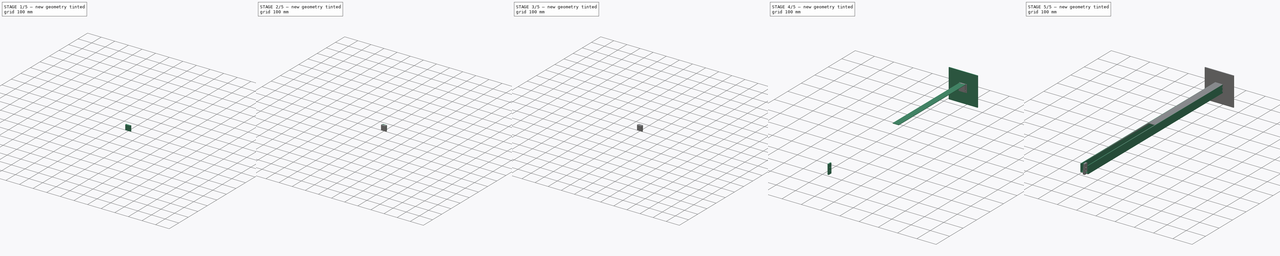
[diagram: build sequence overview — one tinted view per stage of 5, left to right]
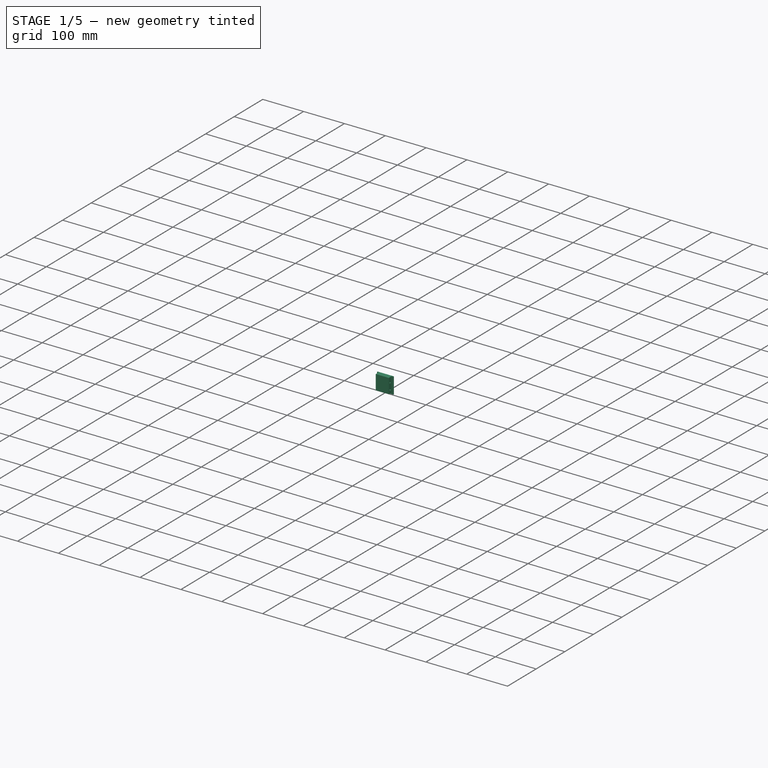
[diagram: stage 1 of 5 — iso view after this stage's code; geometry added in this stage tinted green]
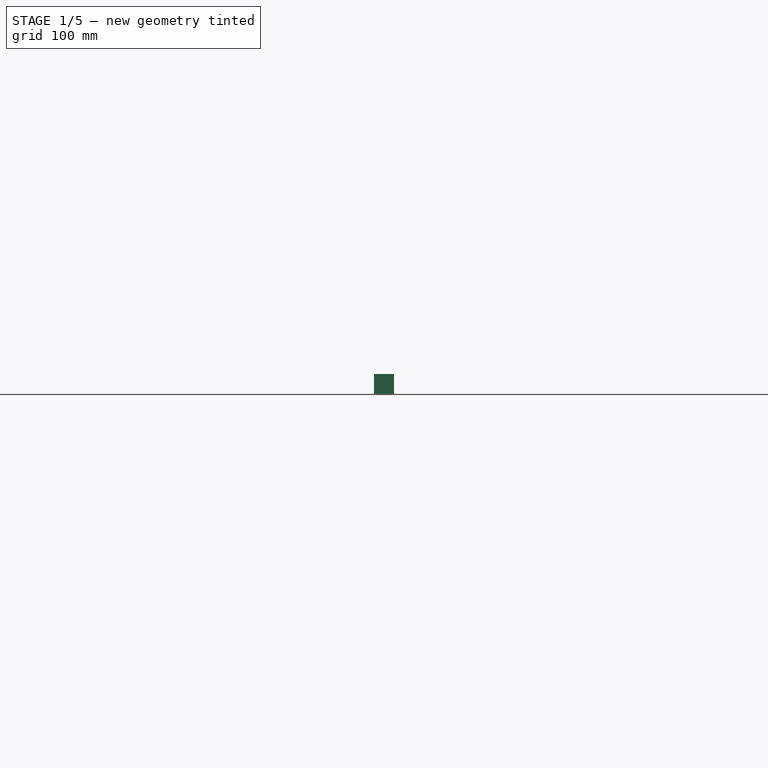
[diagram: stage 1 of 5 — front view after this stage's code; geometry added in this stage tinted green]
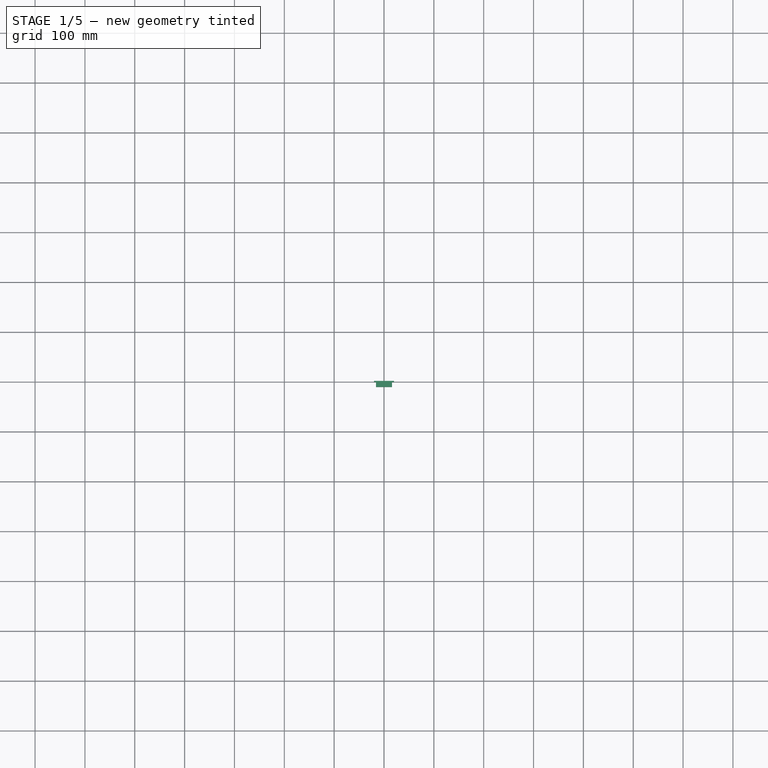
[diagram: stage 1 of 5 — top view after this stage's code; geometry added in this stage tinted green]
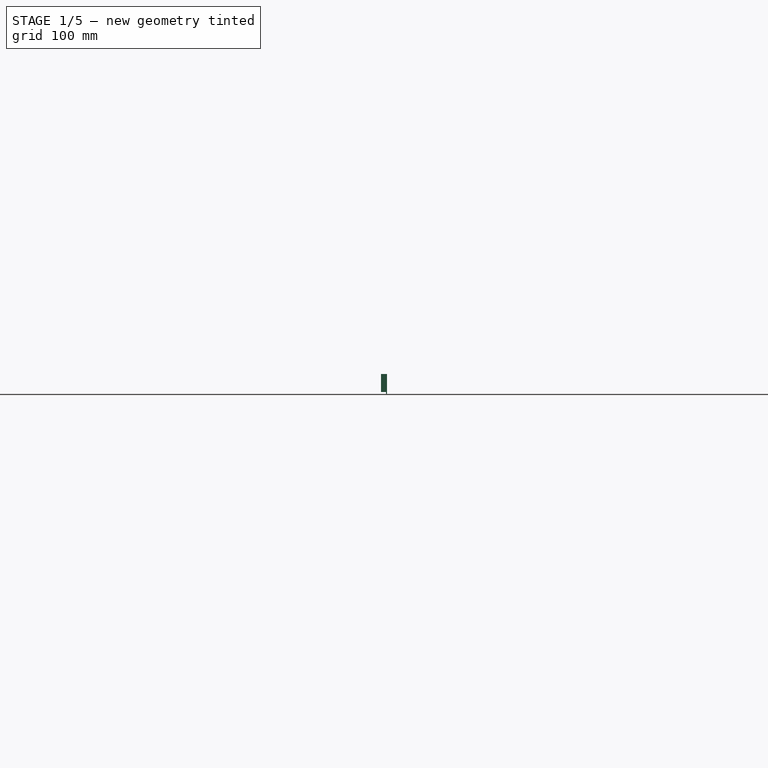
[diagram: stage 1 of 5 — right view after this stage's code; geometry added in this stage tinted green]
FCSTD DOCUMENT  (FreeCAD 0.20R)
Label: Alu-Reflector
License: All rights reserved
LicenseURL: http://en.wikipedia.org/wiki/All_rights_reserved
objects: Sketcher::SketchObject×19, PartDesign::Pad×11, PartDesign::Body×9, PartDesign::Pocket×8, Part::Part2DObjectPython×3, PartDesign::FeatureBase×1, App::DocumentObjectGroup×1, PartDesign::Mirrored×1
note: 71 computed .brp shape members not serialized (recipe doc carries the construction recipe); baked Part::Feature solids carry a one-line shape summary decoded from their .brp

FEATURE [PartDesign::Body] Body001  label="Acrylic-front"
  Group = -> [Sketch001,Pad001]
  Origin = -> Origin001
  Placement = pos=(0,0,38) rot=(0,0,1;0rad)
  Tip = -> Pad001
FEATURE [Sketcher::SketchObject] Sketch002
  FullyConstrained = true
  MapMode = 5
  Placement = pos=(0,0,0) rot=(1,0,0;1.5708rad)
  Support = -> [XZ_Plane008]
  sketch-geometry (4):
    g0: LineSegment StartX=-20 StartY=40 StartZ=0 EndX=20 EndY=40 EndZ=0
    g1: LineSegment StartX=20 StartY=40 StartZ=0 EndX=20 EndY=0 EndZ=0
    g2: LineSegment StartX=20 StartY=0 StartZ=0 EndX=-20 EndY=0 EndZ=0
    g3: LineSegment StartX=-20 StartY=0 StartZ=0 EndX=-20 EndY=40 EndZ=0
  constraints (11):
    c: Horizontal(g2)
    c: Vertical(g1)
    c: Vertical(g3)
    c: DistanceY(g2,g0) = 40
    c: DistanceX(g3,g1) = 40
    c: Symmetric(g3,g1,g-2)
    c: PointOnObject(g2,g-1)
    c: Coincident(g0,g3)
    c: Coincident(g0,g1)
    c: Coincident(g1,g2)
    c: Coincident(g2,g3)
FEATURE [PartDesign::Pad] Pad002
  Direction = (0,-1,-2e-16)
  Length = 2
  Length2 = 10
  Placement = pos=(0,0,0) rot=(1,0,0;1.5708rad)
  Profile = -> Sketch002
  ReferenceAxis = -> Sketch002 [N_Axis]
  Reversed = true
  Type = 0
FEATURE [Sketcher::SketchObject] Sketch006
  FullyConstrained = true
  MapMode = 5
  Placement = pos=(0,0,0) rot=(-1,0,0;1.5708rad)
  Support = -> [Pad003]
  sketch-geometry (4):
    g0: LineSegment StartX=-16 StartY=-4 StartZ=0 EndX=16 EndY=-4 EndZ=0
    g1: LineSegment StartX=16 StartY=-4 StartZ=0 EndX=16 EndY=-40 EndZ=0
    g2: LineSegment StartX=16 StartY=-40 StartZ=0 EndX=-16 EndY=-40 EndZ=0
    g3: LineSegment StartX=-16 StartY=-40 StartZ=0 EndX=-16 EndY=-4 EndZ=0
  constraints (11):
    c: Coincident(g0,g1)
    c: Coincident(g1,g2)
    c: Coincident(g2,g3)
    c: Coincident(g3,g0)
    c: Horizontal(g0)
    c: Vertical(g1)
    c: Vertical(g3)
    c: DistanceX(g2,g2) = 32
    c: Symmetric(g1,g2,g-2)
    c: DistanceY(g1,g1) = 36
    c: DistanceY(g0) = -4
FEATURE [Sketcher::SketchObject] Sketch007
  FullyConstrained = true
  MapMode = 5
  Placement = pos=(0,0,0) rot=(1,0,0;1.5708rad)
  Support = -> [Pad002]
  sketch-geometry (4):
    g0: LineSegment StartX=-16 StartY=40 StartZ=0 EndX=16 EndY=40 EndZ=0
    g1: LineSegment StartX=16 StartY=40 StartZ=0 EndX=16 EndY=4 EndZ=0
    g2: LineSegment StartX=16 StartY=4 StartZ=0 EndX=-16 EndY=4 EndZ=0
    g3: LineSegment StartX=-16 StartY=4 StartZ=0 EndX=-16 EndY=40 EndZ=0
  constraints (11):
    c: Coincident(g0,g1)
    c: Coincident(g1,g2)
    c: Coincident(g2,g3)
    c: Coincident(g3,g0)
    c: Horizontal(g2)
    c: Vertical(g1)
    c: Vertical(g3)
    c: Symmetric(g0,g0,g-2)
    c: DistanceX(g0,g0) = 32
    c: DistanceY(g3,g3) = 36
    c: DistanceY(g1) = 4
FEATURE [PartDesign::Pad] Pad006
  BaseFeature = -> Pad002
  Direction = (0,-1,-2e-16)
  Length = 10
  Length2 = 10
  Placement = pos=(0,0,0) rot=(1,0,0;1.5708rad)
  Profile = -> Sketch007
  ReferenceAxis = -> Sketch007 [N_Axis]
  Type = 0
FEATURE [Sketcher::SketchObject] Sketch008
  FullyConstrained = true
  MapMode = 5
  Placement = pos=(-16,0,0) rot=(0.707107,0,-0.707107;3.14159rad)
  Support = -> [Pad006]
  sketch-geometry (3):
    g0: Circle CenterX=-28 CenterY=5 CenterZ=0 NormalX=0 NormalY=0 NormalZ=1 AngleXU=0 Radius=2
    g1: Circle CenterX=-12 CenterY=5 CenterZ=0 NormalX=0 NormalY=0 NormalZ=1 AngleXU=0 Radius=2
    g2: LineSegment StartX=-28 StartY=5 StartZ=0 EndX=-12 EndY=5 EndZ=0
  constraints (8):
    c: Equal(g0,g1)
    c: Coincident(g2,g0)
    c: Coincident(g2,g1)
    c: Horizontal(g2)
    c: DistanceX(g2,g2) = 16
    c: Diameter(g0) = 4
    c: DistanceY(g1) = 5
    c: DistanceX(g1) = -12
FEATURE [PartDesign::Pocket] Pocket
  BaseFeature = -> Pad006
  Direction = (1,0,2e-16)
  Length = 8
  Length2 = 5
  Placement = pos=(0,0,0) rot=(1,0,0;1.5708rad)
  Profile = -> Sketch008
  ReferenceAxis = -> Sketch008 [N_Axis]
  Type = 0
FEATURE [PartDesign::Body] Body015  label="Mal"
  Group = -> [Sketch037,Pad022,Sketch038,Pad023]
  Origin = -> Origin021
  Placement = pos=(20,0,0) rot=(0,0,1;0rad)
  Tip = -> Pad023
FEATURE [Sketcher::SketchObject] Sketch039
  FullyConstrained = true
  MapMode = 5
  Placement = pos=(16,0,0) rot=(0.707107,0,0.707107;3.14159rad)
  sketch-geometry (3):
    g0: Circle CenterX=12 CenterY=5 CenterZ=0 NormalX=0 NormalY=0 NormalZ=1 AngleXU=0 Radius=2
    g1: Circle CenterX=28 CenterY=5 CenterZ=0 NormalX=0 NormalY=0 NormalZ=1 AngleXU=0 Radius=2
    g2: LineSegment StartX=12 StartY=5 StartZ=0 EndX=28 EndY=5 EndZ=0
  constraints (8):
    c: Equal(g1,g0)
    c: Coincident(g2,g0)
    c: Coincident(g2,g1)
    c: Horizontal(g2)
    c: DistanceX(g2,g2) = 16
    c: DistanceY(g0) = 5
    c: DistanceX(g0) = 12
    c: Radius(g0) = 2
FEATURE [PartDesign::Pocket] Pocket005
  BaseFeature = -> Pocket
  Direction = (-1,0,2e-16)
  Length = 8
  Length2 = 5
  Placement = pos=(0,0,0) rot=(1,0,0;1.5708rad)
  Profile = -> Sketch039
  ReferenceAxis = -> Sketch039 [N_Axis]
  Type = 0
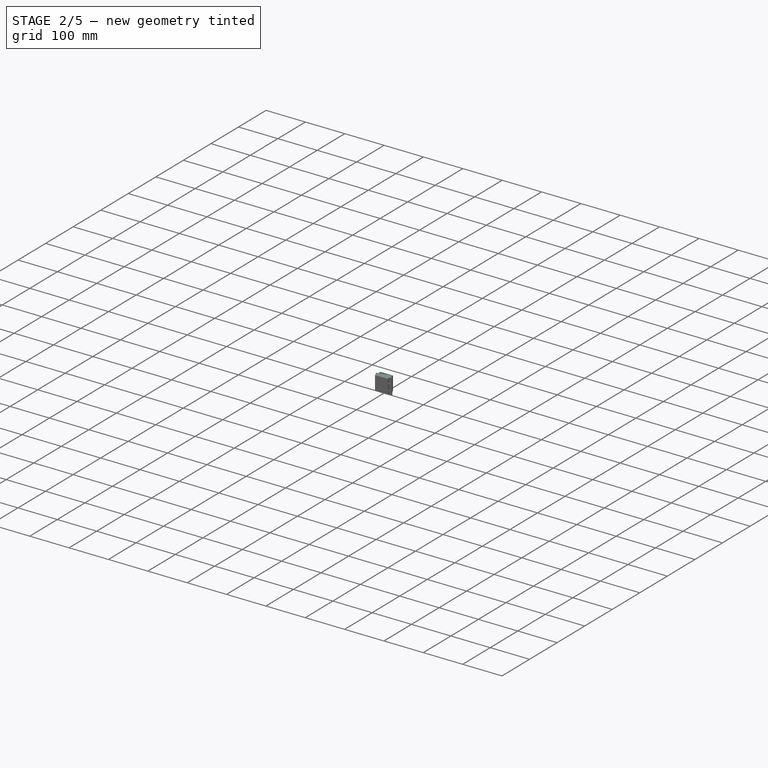
[diagram: stage 2 of 5 — iso view after this stage's code; geometry added in this stage tinted green]
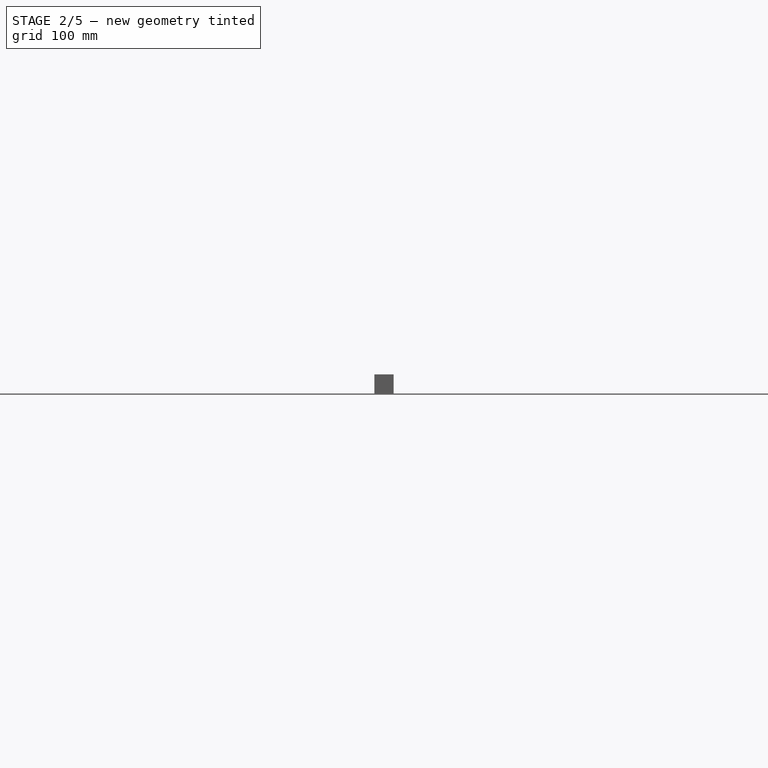
[diagram: stage 2 of 5 — front view after this stage's code; geometry added in this stage tinted green]
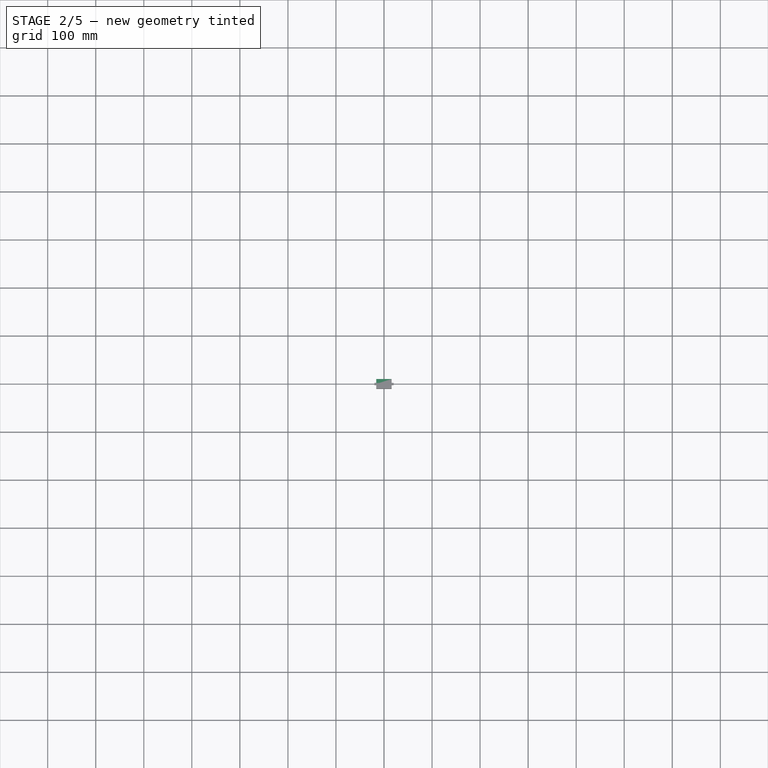
[diagram: stage 2 of 5 — top view after this stage's code; geometry added in this stage tinted green]
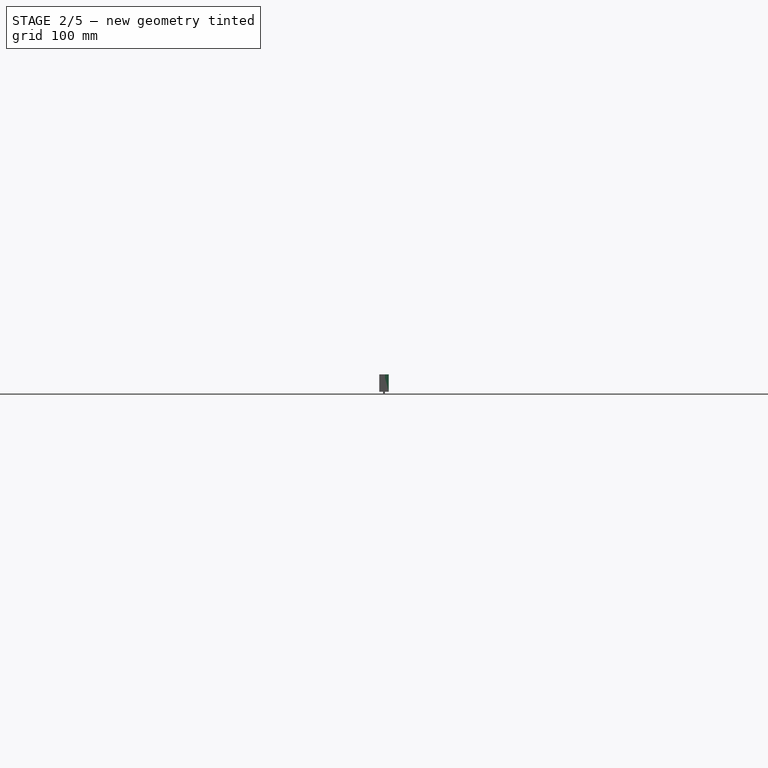
[diagram: stage 2 of 5 — right view after this stage's code; geometry added in this stage tinted green]
FEATURE [Sketcher::SketchObject] Sketch003
  FullyConstrained = true
  MapMode = 5
  Placement = pos=(0,0,0) rot=(1,0,0;1.5708rad)
  Support = -> [XZ_Plane009]
  sketch-geometry (4):
    g0: LineSegment StartX=-20 StartY=40 StartZ=0 EndX=20 EndY=40 EndZ=0
    g1: LineSegment StartX=20 StartY=40 StartZ=0 EndX=20 EndY=0 EndZ=0
    g2: LineSegment StartX=20 StartY=0 StartZ=0 EndX=-20 EndY=0 EndZ=0
    g3: LineSegment StartX=-20 StartY=0 StartZ=0 EndX=-20 EndY=40 EndZ=0
  constraints (11):
    c: Horizontal(g2)
    c: Vertical(g1)
    c: Vertical(g3)
    c: DistanceY(g2,g0) = 40
    c: DistanceX(g3,g1) = 40
    c: Symmetric(g0,g0,g-2)
    c: Coincident(g2,g3)
    c: Coincident(g1,g2)
    c: Coincident(g0,g3)
    c: Coincident(g0,g1)
    c: PointOnObject(g1,g-1)
FEATURE [PartDesign::Pad] Pad003
  Direction = (0,-1,-2e-16)
  Length = 2
  Length2 = 10
  Placement = pos=(0,0,0) rot=(1,0,0;1.5708rad)
  Profile = -> Sketch003
  ReferenceAxis = -> Sketch003 [N_Axis]
  Type = 0
FEATURE [PartDesign::Body] Body012  label="Acrylic-bottom"
  Group = -> [Sketch029,Pad018]
  Origin = -> Origin018
  Placement = pos=(0,2,0) rot=(0,0,1;0rad)
  Tip = -> Pad018
FEATURE [PartDesign::Pad] Pad019
  BaseFeature = -> Pad003
  Direction = (0,1,2e-16)
  Length = 10
  Length2 = 10
  Placement = pos=(0,0,0) rot=(1,0,0;1.5708rad)
  Profile = -> Sketch006
  ReferenceAxis = -> Sketch006 [N_Axis]
  Type = 0
FEATURE [PartDesign::Body] Body017  label="Joint"
  Group = -> [Sketch041,Pad024,Sketch042,Pocket007,Sketch043,Pocket008,Mirrored]
  Origin = -> Origin023
  Placement = pos=(0,-500,0) rot=(0,0,1;0rad)
  Tip = -> Mirrored
FEATURE [PartDesign::Pocket] Pocket009
  BaseFeature = -> Pad019
  Direction = (1,0,2e-16)
  Length = 8
  Length2 = 5
  Placement = pos=(0,0,0) rot=(1,0,0;1.5708rad)
  Profile = -> Sketch031
  ReferenceAxis = -> Sketch031 [N_Axis]
  Type = 0
FEATURE [PartDesign::Body] Body003  label="Top"
  Group = -> [Sketch003,Pad003,Sketch006,Pad019,Sketch031,Sketch040,Pocket009,Pocket010]
  Origin = -> Origin009
  Placement = pos=(0,-1000,0) rot=(0,0,1;0rad)
  Tip = -> Pocket010
FEATURE [Sketcher::SketchObject] Sketch044
  FullyConstrained = true
  MapMode = 5
  Placement = pos=(0,2,4e-16) rot=(-1,0,0;1.5708rad)
  Support = -> [Pocket005]
  sketch-geometry (8):
    g0: LineSegment StartX=-12.5 StartY=-7.5 StartZ=0 EndX=12.5 EndY=-7.5 EndZ=0
    g1: LineSegment StartX=12.5 StartY=-7.5 StartZ=0 EndX=12.5 EndY=-32.5 EndZ=0
    g2: LineSegment StartX=12.5 StartY=-32.5 StartZ=0 EndX=-12.5 EndY=-32.5 EndZ=0
    g3: LineSegment StartX=-12.5 StartY=-32.5 StartZ=0 EndX=-12.5 EndY=-7.5 EndZ=0
    g4: Circle CenterX=-12.5 CenterY=-7.5 CenterZ=0 NormalX=0 NormalY=0 NormalZ=1 AngleXU=0 Radius=2
    g5: Circle CenterX=12.5 CenterY=-7.5 CenterZ=0 NormalX=0 NormalY=0 NormalZ=1 AngleXU=0 Radius=2
    g6: Circle CenterX=12.5 CenterY=-32.5 CenterZ=0 NormalX=0 NormalY=0 NormalZ=1 AngleXU=0 Radius=2
    g7: Circle CenterX=-12.5 CenterY=-32.5 CenterZ=0 NormalX=0 NormalY=0 NormalZ=1 AngleXU=0 Radius=2
  constraints (19):
    c: Coincident(g0,g1)
    c: Coincident(g1,g2)
    c: Coincident(g2,g3)
    c: Coincident(g3,g0)
    c: Horizontal(g0)
    c: Vertical(g1)
    c: Vertical(g3)
    c: Coincident(g4,g0)
    c: Coincident(g5,g0)
    c: Coincident(g6,g1)
    c: Coincident(g7,g2)
    c: Symmetric(g7,g6,g-2)
    c: Equal(g0,g1)
    c: DistanceX(g0,g0) = 25
    c: DistanceY(g5) = -7.5
    c: Equal(g4,g5)
    c: Equal(g5,g6)
    c: Equal(g6,g7)
    c: Radius(g5) = 2
FEATURE [PartDesign::Pocket] Pocket011
  BaseFeature = -> Pocket005
  Direction = (0,-1,-2e-16)
  Length = 8
  Length2 = 5
  Placement = pos=(0,0,0) rot=(1,0,0;1.5708rad)
  Profile = -> Sketch044
  ReferenceAxis = -> Sketch044 [N_Axis]
  Type = 0
FEATURE [PartDesign::Body] Body002  label="Bottom"
  Group = -> [Sketch002,Pad002,Sketch007,Pad006,Sketch008,Pocket,Sketch039,Pocket005,Sketch044,Pocket011]
  Origin = -> Origin008
  Tip = -> Pocket011
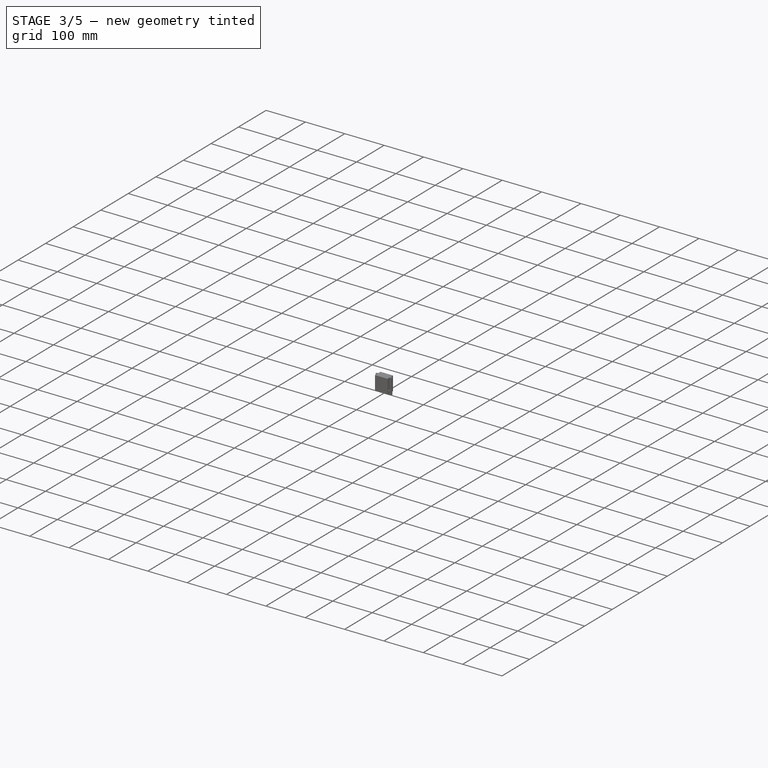
[diagram: stage 3 of 5 — iso view after this stage's code; geometry added in this stage tinted green]
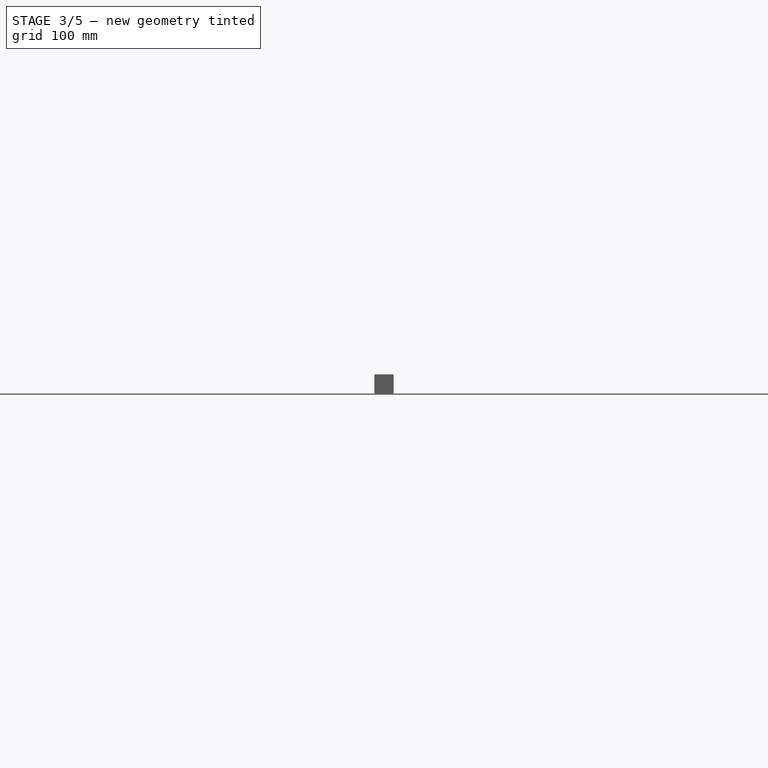
[diagram: stage 3 of 5 — front view after this stage's code; geometry added in this stage tinted green]
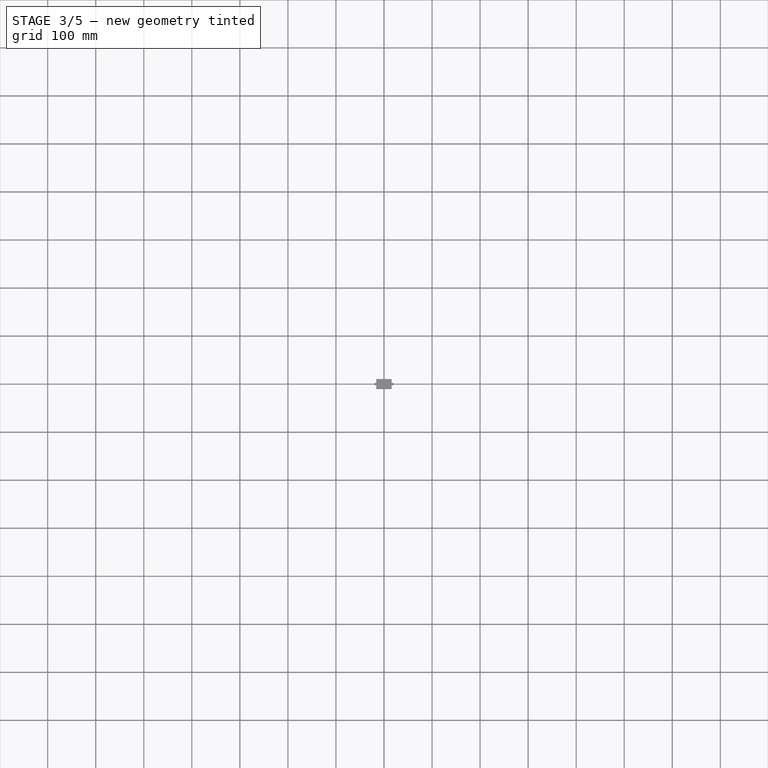
[diagram: stage 3 of 5 — top view after this stage's code; geometry added in this stage tinted green]
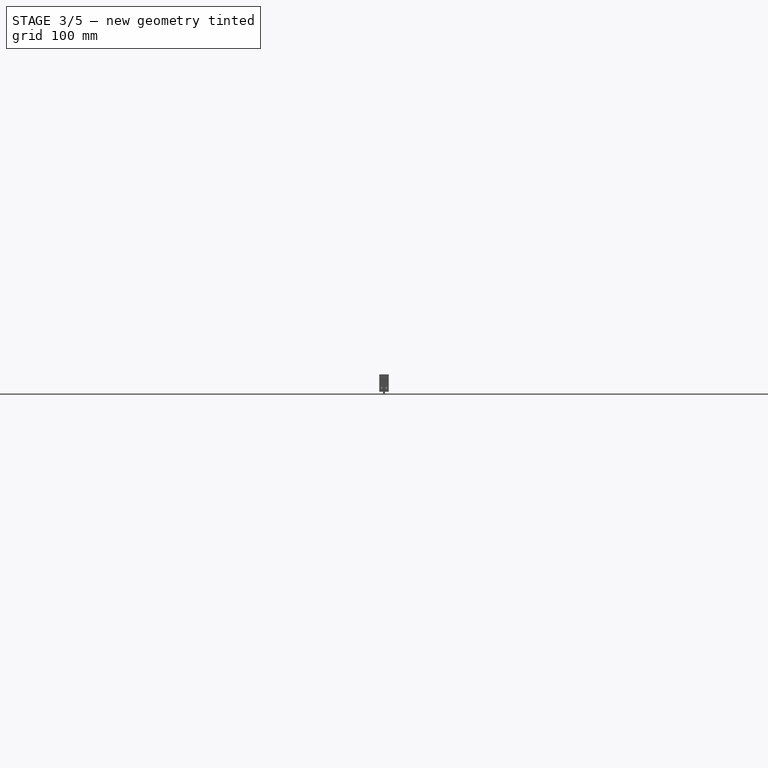
[diagram: stage 3 of 5 — right view after this stage's code; geometry added in this stage tinted green]
FEATURE [PartDesign::Body] Body016  label="Acrylic-front-top"
  BaseFeature = -> Body001
  Group = -> [Clone]
  Origin = -> Origin022
  Placement = pos=(0,-1000,0) rot=(0,0,1;3.14159rad)
  Tip = -> Clone
FEATURE [Part::Part2DObjectPython] Shape2DView003  # Draft 2D object (typed FeaturePython)
  AutoUpdate = true
  Base = -> Clone
  Clip = false
  FaceNumbers = [9]
  FuseArch = false
  HiddenLines = false
  InPlace = true
  OnlySolids = false
  Placement = pos=(-304,73,0) rot=(0,0,1;0rad)
  Projection = (0,0,1)
  ProjectionMode = 0
  SegmentLength = 0.05
  Tessellation = false
  VisibleOnly = false
FEATURE [App::DocumentObjectGroup] Group  label="Export"
  Group = -> [Shape2DView003,Shape2DView001,Shape2DView]
FEATURE [Sketcher::SketchObject] Sketch041
  FullyConstrained = true
  MapMode = 5
  Placement = pos=(0,0,0) rot=(1,0,0;1.5708rad)
  Support = -> [XZ_Plane023]
  sketch-geometry (12):
    g0: LineSegment StartX=-16 StartY=38 StartZ=0 EndX=16 EndY=38 EndZ=0
    g1: LineSegment StartX=16 StartY=38 StartZ=0 EndX=16 EndY=26 EndZ=0
    g2: LineSegment StartX=-16 StartY=26 StartZ=0 EndX=-16 EndY=38 EndZ=0
    g3: LineSegment StartX=-16 StartY=26 StartZ=0 EndX=-12 EndY=20.5 EndZ=0
    g4: LineSegment StartX=-12 StartY=20.5 StartZ=0 EndX=-12 EndY=14.5 EndZ=0
    g5: LineSegment StartX=-12 StartY=14.5 StartZ=0 EndX=-16 EndY=9 EndZ=0
    g6: LineSegment StartX=-16 StartY=9 StartZ=0 EndX=-16 EndY=4 EndZ=0
    g7: LineSegment StartX=-16 StartY=4 StartZ=0 EndX=16 EndY=4 EndZ=0
    g8: LineSegment StartX=16 StartY=4 StartZ=0 EndX=16 EndY=9 EndZ=0
    g9: LineSegment StartX=16 StartY=9 StartZ=0 EndX=12 EndY=14.5 EndZ=0
    g10: LineSegment StartX=12 StartY=14.5 StartZ=0 EndX=12 EndY=20.5 EndZ=0
    g11: LineSegment StartX=12 StartY=20.5 StartZ=0 EndX=16 EndY=26 EndZ=0
  constraints (32):
    c: Coincident(g0,g1)
    c: Coincident(g2,g0)
    c: Vertical(g1)
    c: Vertical(g2)
    c: Symmetric(g0,g0,g-2)
    c: DistanceX(g0,g0) = 32
    c: DistanceY(g1,g1) = 12
    c: DistanceY(g0) = 38
    c: Coincident(g2,g3)
    c: Coincident(g3,g4)
    c: Vertical(g4)
    c: Coincident(g4,g5)
    c: Coincident(g5,g6)
    c: Coincident(g6,g7)
    c: Horizontal(g7)
    c: Coincident(g7,g8)
    c: Vertical(g8)
    c: Coincident(g8,g9)
    c: Coincident(g9,g10)
    c: Coincident(g10,g11)
    c: Coincident(g11,g1)
    c: Symmetric(g3,g10,g-2)
    c: DistanceX(g2,g3) = 4
    c: Vertical(g6)
    c: Symmetric(g5,g8,g-2)
    c: DistanceX(g7,g7) = 32
    c: Symmetric(g4,g9,g-2)
    c: Equal(g11,g9)
    c: Equal(g5,g3)
    c: DistanceY(g6,g6) = 5
    c: DistanceY(g7,g0) = 34
    c: DistanceY(g4,g4) = 6
FEATURE [PartDesign::Pad] Pad024
  Direction = (0,-1,2e-16)
  Length = 16
  Length2 = 10
  Midplane = true
  Placement = pos=(0,0,0) rot=(1,0,0;1.5708rad)
  Profile = -> Sketch041
  ReferenceAxis = -> Sketch041 [N_Axis]
  Type = 0
FEATURE [Sketcher::SketchObject] Sketch042
  FullyConstrained = true
  MapMode = 5
  Placement = pos=(0,1.67e-14,38) rot=(0,0,1;3.14159rad)
  Support = -> [Pad024]
  sketch-geometry (8):
    g0: LineSegment StartX=-12 StartY=4 StartZ=0 EndX=12 EndY=4 EndZ=0
    g1: LineSegment StartX=12 StartY=4 StartZ=0 EndX=12 EndY=-4 EndZ=0
    g2: LineSegment StartX=12 StartY=-4 StartZ=0 EndX=-12 EndY=-4 EndZ=0
    g3: LineSegment StartX=-12 StartY=-4 StartZ=0 EndX=-12 EndY=4 EndZ=0
    g4: Circle CenterX=-12 CenterY=4 CenterZ=0 NormalX=0 NormalY=0 NormalZ=1 AngleXU=0 Radius=2
    g5: Circle CenterX=-12 CenterY=-4 CenterZ=0 NormalX=0 NormalY=0 NormalZ=1 AngleXU=0 Radius=2
    g6: Circle CenterX=12 CenterY=-4 CenterZ=0 NormalX=0 NormalY=0 NormalZ=1 AngleXU=0 Radius=2
    g7: Circle CenterX=12 CenterY=4 CenterZ=0 NormalX=0 NormalY=0 NormalZ=1 AngleXU=0 Radius=2
  constraints (18):
    c: Coincident(g0,g1)
    c: Coincident(g1,g2)
    c: Coincident(g2,g3)
    c: Coincident(g3,g0)
    c: Horizontal(g2)
    c: Vertical(g1)
    c: Coincident(g4,g0)
    c: Coincident(g5,g2)
    c: Coincident(g6,g1)
    c: Coincident(g7,g0)
    c: Equal(g6,g7)
    c: Equal(g7,g4)
    c: Equal(g4,g5)
    c: Symmetric(g5,g4,g-1)
    c: Symmetric(g4,g7,g-2)
    c: Radius(g6) = 2
    c: DistanceX(g2,g2) = 24
    c: DistanceY(g3,g3) = 8
FEATURE [PartDesign::Pocket] Pocket007
  BaseFeature = -> Pad024
  Direction = (0,-2e-16,-1)
  Length = 8
  Length2 = 5
  Placement = pos=(0,0,0) rot=(1,0,0;1.5708rad)
  Profile = -> Sketch042
  ReferenceAxis = -> Sketch042 [N_Axis]
  Type = 0
FEATURE [Sketcher::SketchObject] Sketch043
  ExternalGeometry = -> [Pocket007]
  FullyConstrained = true
  MapMode = 5
  Placement = pos=(-16,0,0) rot=(0.707107,0,-0.707107;3.14159rad)
  Support = -> [Pocket007]
  sketch-geometry (1):
    g0: Circle CenterX=-32 CenterY=0 CenterZ=0 NormalX=0 NormalY=0 NormalZ=1 AngleXU=0 Radius=2
  constraints (3):
    c: PointOnObject(g0,g-1)
    c: Radius(g0) = 2
    c: DistanceX(g-3,g0) = 6
FEATURE [PartDesign::Pocket] Pocket008
  BaseFeature = -> Pocket007
  Direction = (1,0,2e-16)
  Length = 8
  Length2 = 5
  Placement = pos=(0,0,0) rot=(1,0,0;1.5708rad)
  Profile = -> Sketch043
  ReferenceAxis = -> Sketch043 [N_Axis]
  Type = 0
FEATURE [PartDesign::Mirrored] Mirrored
  BaseFeature = -> Pocket008
  MirrorPlane = -> YZ_Plane023
  Originals = -> [Pocket008]
  Placement = pos=(0,0,0) rot=(1,0,0;1.5708rad)
FEATURE [Sketcher::SketchObject] Sketch040
  FullyConstrained = true
  MapMode = 5
  Placement = pos=(16,0,0) rot=(0.707107,0,0.707107;3.14159rad)
  Support = -> [Pocket009]
  sketch-geometry (3):
    g0: Circle CenterX=12 CenterY=-5 CenterZ=0 NormalX=0 NormalY=0 NormalZ=1 AngleXU=0 Radius=2
    g1: Circle CenterX=28 CenterY=-5 CenterZ=0 NormalX=0 NormalY=0 NormalZ=1 AngleXU=0 Radius=2
    g2: LineSegment StartX=12 StartY=-5 StartZ=0 EndX=28 EndY=-5 EndZ=0
  constraints (8):
    c: Coincident(g2,g0)
    c: Coincident(g2,g1)
    c: Horizontal(g2)
    c: Equal(g1,g0)
    c: Radius(g1) = 2
    c: DistanceX(g2,g2) = 16
    c: DistanceX(g0) = 12
    c: DistanceY(g0) = -5
FEATURE [PartDesign::Pocket] Pocket010
  BaseFeature = -> Pocket009
  Direction = (-1,0,2e-16)
  Length = 8
  Length2 = 5
  Placement = pos=(0,0,0) rot=(1,0,0;1.5708rad)
  Profile = -> Sketch040
  ReferenceAxis = -> Sketch040 [N_Axis]
  Type = 0
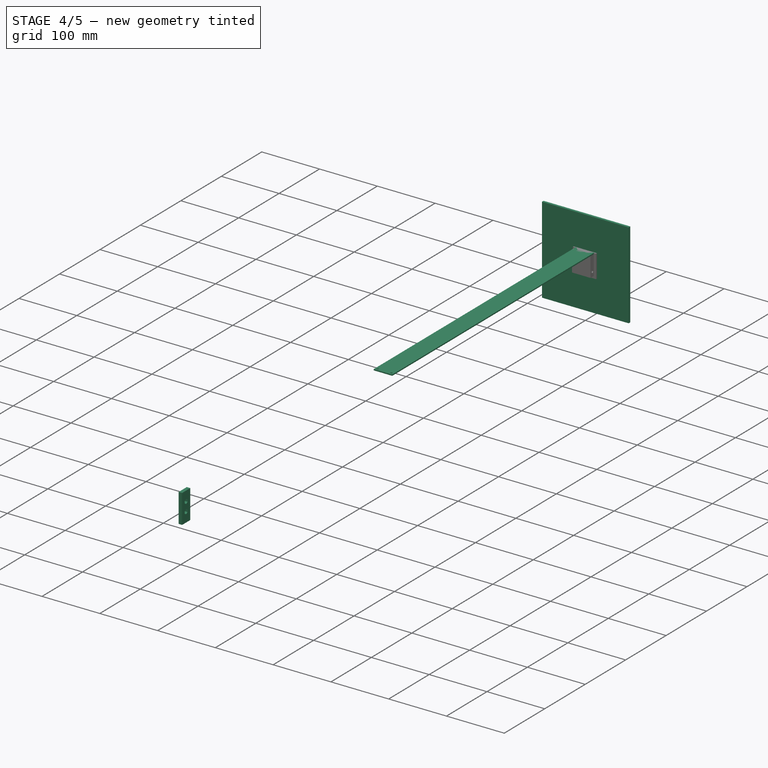
[diagram: stage 4 of 5 — iso view after this stage's code; geometry added in this stage tinted green]
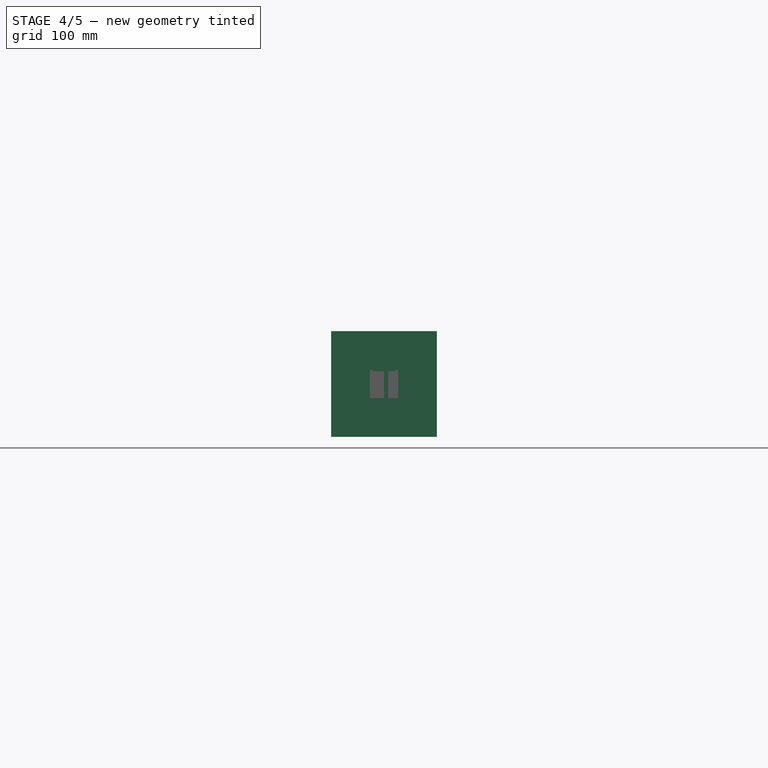
[diagram: stage 4 of 5 — front view after this stage's code; geometry added in this stage tinted green]
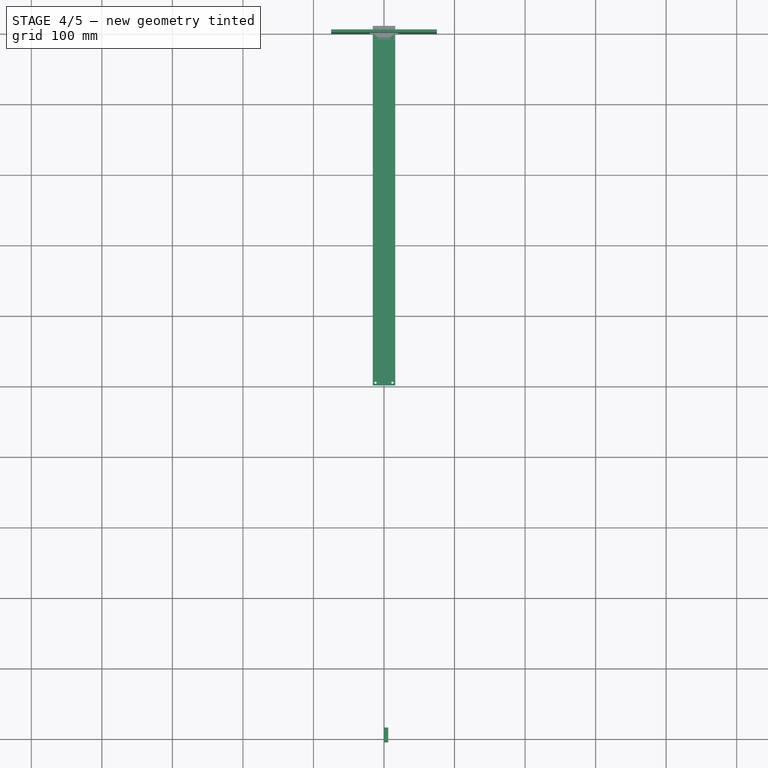
[diagram: stage 4 of 5 — top view after this stage's code; geometry added in this stage tinted green]
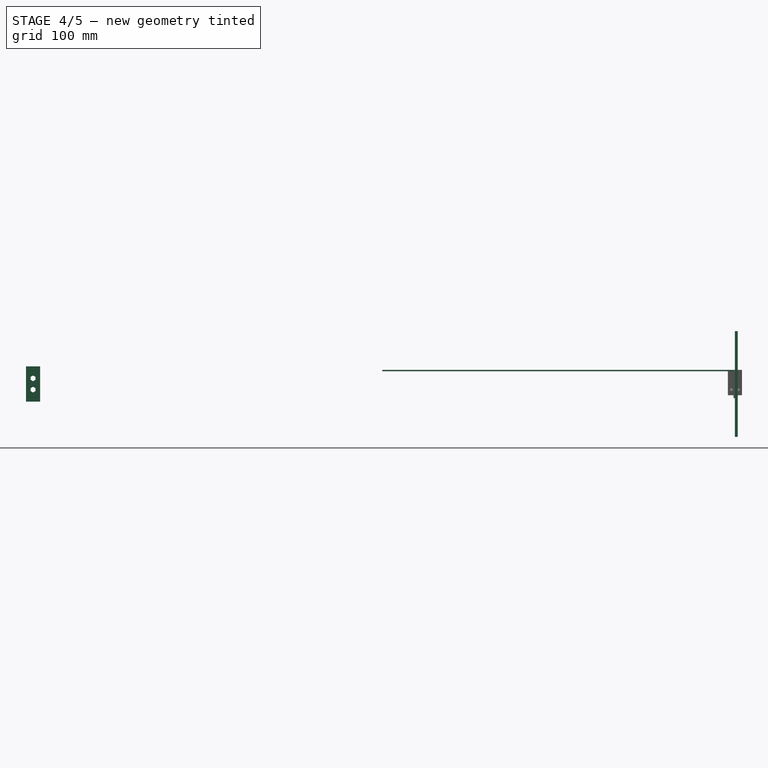
[diagram: stage 4 of 5 — right view after this stage's code; geometry added in this stage tinted green]
FEATURE [Sketcher::SketchObject] Sketch001
  FullyConstrained = true
  MapMode = 5
  sketch-geometry (10):
    g0: LineSegment StartX=-16 StartY=-500 StartZ=0 EndX=16 EndY=-500 EndZ=0
    g1: LineSegment StartX=16 StartY=-500 StartZ=0 EndX=16 EndY=0 EndZ=0
    g2: LineSegment StartX=16 StartY=0 StartZ=0 EndX=-16 EndY=0 EndZ=0
    g3: LineSegment StartX=-16 StartY=0 StartZ=0 EndX=-16 EndY=-500 EndZ=0
    g4: LineSegment StartX=-8 StartY=-5 StartZ=0 EndX=8 EndY=-5 EndZ=0
    g5: Circle CenterX=-8 CenterY=-5 CenterZ=0 NormalX=0 NormalY=0 NormalZ=1 AngleXU=0 Radius=1.6
    g6: Circle CenterX=8 CenterY=-5 CenterZ=0 NormalX=0 NormalY=0 NormalZ=1 AngleXU=0 Radius=1.6
    g7: Circle CenterX=-12 CenterY=-496 CenterZ=0 NormalX=0 NormalY=0 NormalZ=1 AngleXU=0 Radius=1.6
    g8: Circle CenterX=12 CenterY=-496 CenterZ=0 NormalX=0 NormalY=0 NormalZ=1 AngleXU=0 Radius=1.6
    g9: LineSegment StartX=-12 StartY=-496 StartZ=0 EndX=12 EndY=-496 EndZ=0
  constraints (25):
    c: Coincident(g0,g1)
    c: Coincident(g1,g2)
    c: Coincident(g2,g3)
    c: Coincident(g3,g0)
    c: Horizontal(g2)
    c: Vertical(g1)
    c: Vertical(g3)
    c: Symmetric(g0,g0,g-2)
    c: DistanceY(g1,g1) = 500
    c: DistanceX(g2,g2) = 32
    c: PointOnObject(g2,g-1)
    c: Coincident(g5,g4)
    c: Coincident(g6,g4)
    c: Equal(g6,g5)
    c: Radius(g6) = 1.6
    c: Symmetric(g5,g6,g-2)
    c: DistanceX(g4,g4) = 16
    c: DistanceY(g6) = -5
    c: Equal(g7,g8)
    c: Coincident(g9,g7)
    c: Coincident(g9,g8)
    c: Symmetric(g7,g8,g-2)
    c: DistanceX(g9,g9) = 24
    c: DistanceY(g0,g8) = 4
    c: Equal(g8,g6)
FEATURE [PartDesign::Pad] Pad001
  Direction = (0,0,1)
  Length = 2
  Length2 = 10
  Profile = -> Sketch001
  ReferenceAxis = -> Sketch001 [N_Axis]
  Type = 0
FEATURE [Sketcher::SketchObject] Sketch029
  FullyConstrained = true
  MapMode = 5
  Placement = pos=(0,0,0) rot=(1,0,0;1.5708rad)
  Support = -> [XZ_Plane018]
  sketch-geometry (12):
    g0: LineSegment StartX=-75 StartY=95 StartZ=0 EndX=75 EndY=95 EndZ=0
    g1: LineSegment StartX=75 StartY=95 StartZ=0 EndX=75 EndY=-55 EndZ=0
    g2: LineSegment StartX=75 StartY=-55 StartZ=0 EndX=-75 EndY=-55 EndZ=0
    g3: LineSegment StartX=-75 StartY=-55 StartZ=0 EndX=-75 EndY=95 EndZ=0
    g4: Circle CenterX=-12.5 CenterY=7.5 CenterZ=0 NormalX=0 NormalY=0 NormalZ=1 AngleXU=0 Radius=1.6
    g5: Circle CenterX=-12.5 CenterY=32.5 CenterZ=0 NormalX=0 NormalY=0 NormalZ=1 AngleXU=0 Radius=1.6
    g6: Circle CenterX=12.5 CenterY=32.5 CenterZ=0 NormalX=0 NormalY=0 NormalZ=1 AngleXU=0 Radius=1.6
    g7: Circle CenterX=12.5 CenterY=7.5 CenterZ=0 NormalX=0 NormalY=0 NormalZ=1 AngleXU=0 Radius=1.6
    g8: LineSegment StartX=-12.5 StartY=32.5 StartZ=0 EndX=12.5 EndY=32.5 EndZ=0
    g9: LineSegment StartX=12.5 StartY=32.5 StartZ=0 EndX=12.5 EndY=7.5 EndZ=0
    g10: LineSegment StartX=12.5 StartY=7.5 StartZ=0 EndX=-12.5 EndY=7.5 EndZ=0
    g11: LineSegment StartX=-12.5 StartY=7.5 StartZ=0 EndX=-12.5 EndY=32.5 EndZ=0
  constraints (30):
    c: Coincident(g0,g1)
    c: Coincident(g1,g2)
    c: Coincident(g2,g3)
    c: Coincident(g3,g0)
    c: Horizontal(g2)
    c: Vertical(g1)
    c: Vertical(g3)
    c: Equal(g3,g0)
    c: DistanceY(g3,g3) = 150
    c: Symmetric(g0,g0,g-2)
    c: DistanceY(g0) = 95
    c: Equal(g5,g6)
    c: Equal(g6,g7)
    c: Equal(g7,g4)
    c: Coincident(g8,g9)
    c: Coincident(g9,g10)
    c: Coincident(g10,g11)
    c: Coincident(g11,g8)
    c: Horizontal(g10)
    c: Vertical(g9)
    c: Vertical(g11)
    c: Coincident(g8,g5)
    c: Coincident(g9,g7)
    c: Coincident(g6,g8)
    c: Coincident(g4,g10)
    c: Equal(g11,g8)
    c: Symmetric(g5,g6,g-2)
    c: DistanceX(g8,g8) = 25
    c: Radius(g5) = 1.6
    c: DistanceY(g4) = 7.5
FEATURE [PartDesign::Pad] Pad018
  Direction = (0,-1,2e-16)
  Length = 4
  Length2 = 10
  Placement = pos=(0,0,0) rot=(1,0,0;1.5708rad)
  Profile = -> Sketch029
  ReferenceAxis = -> Sketch029 [N_Axis]
  Reversed = true
  Type = 0
FEATURE [PartDesign::Body] Body013  label="Reflective-tape"
  Group = -> [Sketch033,Pad020]
  Origin = -> Origin019
  Placement = pos=(0,0,4) rot=(0,0,1;0rad)
  Tip = -> Pad020
FEATURE [Part::Part2DObjectPython] Shape2DView  # Draft 2D object (typed FeaturePython)
  AutoUpdate = true
  Base = -> Pad018
  Clip = false
  FaceNumbers = [8]
  FuseArch = false
  HiddenLines = false
  InPlace = true
  OnlySolids = false
  Placement = pos=(-141,0,0) rot=(0,0,1;0rad)
  Projection = (0,-1,0)
  ProjectionMode = 0
  SegmentLength = 0.05
  Tessellation = false
  VisibleOnly = false
FEATURE [Sketcher::SketchObject] Sketch037
  FullyConstrained = true
  MapMode = 5
  Placement = pos=(0,0,0) rot=(0.57735,0.57735,0.57735;2.0944rad)
  Support = -> [YZ_Plane021]
  sketch-geometry (21):
    g0: LineSegment StartX=-1005 StartY=45 StartZ=0 EndX=-985 EndY=45 EndZ=0
    g1: LineSegment StartX=-985 StartY=45 StartZ=0 EndX=-985 EndY=-5 EndZ=0
    g2: LineSegment StartX=-985 StartY=-5 StartZ=0 EndX=-1005 EndY=-5 EndZ=0
    g3: LineSegment StartX=-1005 StartY=-5 StartZ=0 EndX=-1005 EndY=45 EndZ=0
    g4: LineSegment StartX=-995 StartY=32.0415 StartZ=0 EndX=-998.5 EndY=30.0207 EndZ=0
    g5: LineSegment StartX=-998.5 StartY=30.0207 StartZ=0 EndX=-998.5 EndY=25.9793 EndZ=0
    g6: LineSegment StartX=-998.5 StartY=25.9793 StartZ=0 EndX=-995 EndY=23.9585 EndZ=0
    g7: LineSegment StartX=-995 StartY=23.9585 StartZ=0 EndX=-991.5 EndY=25.9793 EndZ=0
    g8: LineSegment StartX=-991.5 StartY=25.9793 StartZ=0 EndX=-991.5 EndY=30.0207 EndZ=0
    g9: LineSegment StartX=-991.5 StartY=30.0207 StartZ=0 EndX=-995 EndY=32.0415 EndZ=0
    g10: Circle CenterX=-995 CenterY=28 CenterZ=0 NormalX=0 NormalY=0 NormalZ=1 AngleXU=0 Radius=4.04145
    g11: LineSegment StartX=-995 StartY=16.0415 StartZ=0 EndX=-998.5 EndY=14.0207 EndZ=0
    g12: LineSegment StartX=-998.5 StartY=14.0207 StartZ=0 EndX=-998.5 EndY=9.97927 EndZ=0
    g13: LineSegment StartX=-998.5 StartY=9.97927 StartZ=0 EndX=-995 EndY=7.95855 EndZ=0
    g14: LineSegment StartX=-995 StartY=7.95855 StartZ=0 EndX=-991.5 EndY=9.97927 EndZ=0
    g15: LineSegment StartX=-991.5 StartY=9.97927 StartZ=0 EndX=-991.5 EndY=14.0207 EndZ=0
    g16: LineSegment StartX=-991.5 StartY=14.0207 StartZ=0 EndX=-995 EndY=16.0415 EndZ=0
    g17: Circle CenterX=-995 CenterY=12 CenterZ=0 NormalX=0 NormalY=0 NormalZ=1 AngleXU=0 Radius=4.04145
    g18: LineSegment StartX=-995 StartY=28 StartZ=0 EndX=-995 EndY=12 EndZ=0
    g19: LineSegment StartX=-995 StartY=12 StartZ=0 EndX=-995 EndY=-5 EndZ=0
    g20: LineSegment StartX=-995 StartY=28 StartZ=0 EndX=-995 EndY=45 EndZ=0
  constraints (54):
    c: Coincident(g0,g1)
    c: Coincident(g1,g2)
    c: Coincident(g2,g3)
    c: Coincident(g3,g0)
    c: Horizontal(g0)
    c: Horizontal(g2)
    c: Vertical(g1)
    c: Vertical(g3)
    c: DistanceY(g3,g3) = 50
    c: DistanceX(g2) = -1005
    c: DistanceX(g0,g0) = 20
    c: Coincident(g4,g5)
    c: Coincident(g5,g6)
    c: Coincident(g6,g7)
    c: Coincident(g7,g8)
    c: Coincident(g8,g9)
    c: Coincident(g9,g4)
    c: Equal(g4, g5-g9) x5
    c: PointOnObject(g4,g10)
    c: PointOnObject(g5,g10)
    c: PointOnObject(g6,g10)
    c: PointOnObject(g7,g10)
    c: PointOnObject(g8,g10)
    c: PointOnObject(g9,g10)
    c: Coincident(g11,g12)
    c: Coincident(g12,g13)
    c: Coincident(g13,g14)
    c: Coincident(g14,g15)
    c: Coincident(g15,g16)
    c: Coincident(g16,g11)
    c: Equal(g11, g12-g16) x5
    c: PointOnObject(g11,g17)
    c: PointOnObject(g12,g17)
    c: PointOnObject(g13,g17)
    c: PointOnObject(g14,g17)
    c: PointOnObject(g15,g17)
    c: PointOnObject(g16,g17)
    c: Coincident(g18,g10)
    c: Coincident(g18,g17)
    c: Vertical(g18)
    c: DistanceY(g18,g18) = 16
    c: Vertical(g8)
    c: Vertical(g15)
    c: DistanceX(g4,g8) = 7
    c: Equal(g17,g10)
    c: DistanceX(g2,g17) = 10
    c: Coincident(g19,g17)
    c: PointOnObject(g19,g2)
    c: Vertical(g19)
    c: Coincident(g20,g10)
    c: PointOnObject(g20,g0)
    c: Vertical(g20)
    c: Equal(g20,g19)
    c: DistanceY(g2) = -5
FEATURE [PartDesign::Pad] Pad022
  Direction = (1,-2e-16,3e-16)
  Length = 6
  Length2 = 10
  Placement = pos=(0,0,0) rot=(0.57735,0.57735,0.57735;2.0944rad)
  Profile = -> Sketch037
  ReferenceAxis = -> Sketch037 [N_Axis]
  Type = 0
FEATURE [Part::Part2DObjectPython] Shape2DView001  # Draft 2D object (typed FeaturePython)
  AutoUpdate = true
  Base = -> Pad001
  Clip = false
  FaceNumbers = [9]
  FuseArch = false
  HiddenLines = false
  InPlace = true
  OnlySolids = false
  Placement = pos=(-268,75,0) rot=(0,0,1;0rad)
  Projection = (0,0,1)
  ProjectionMode = 0
  SegmentLength = 0.05
  Tessellation = false
  VisibleOnly = false
FEATURE [PartDesign::FeatureBase] Clone
  BaseFeature = -> Body001
  Placement = pos=(0,0,38) rot=(0,0,1;0rad)
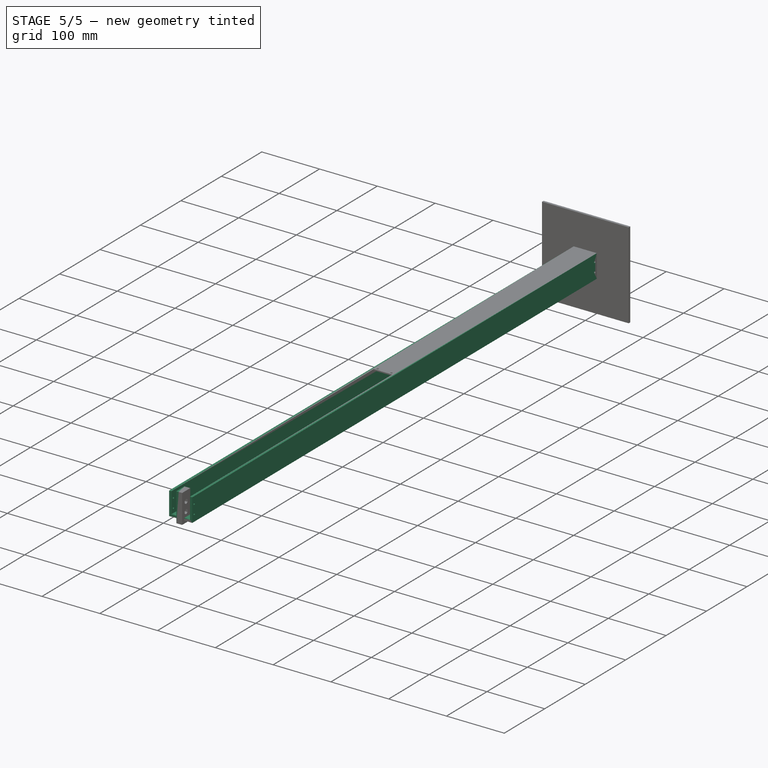
[diagram: stage 5 of 5 — iso view after this stage's code; geometry added in this stage tinted green]
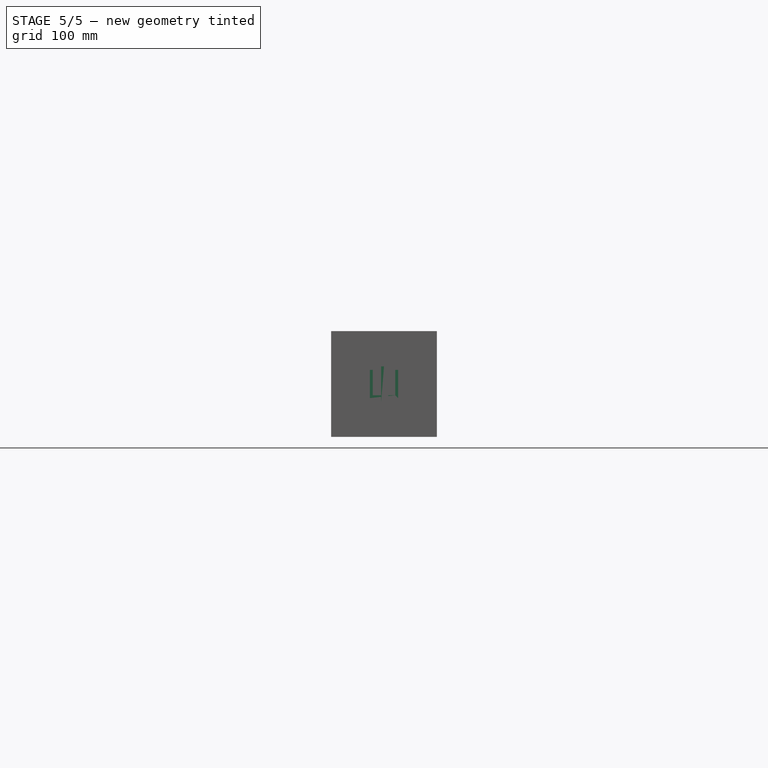
[diagram: stage 5 of 5 — front view after this stage's code; geometry added in this stage tinted green]
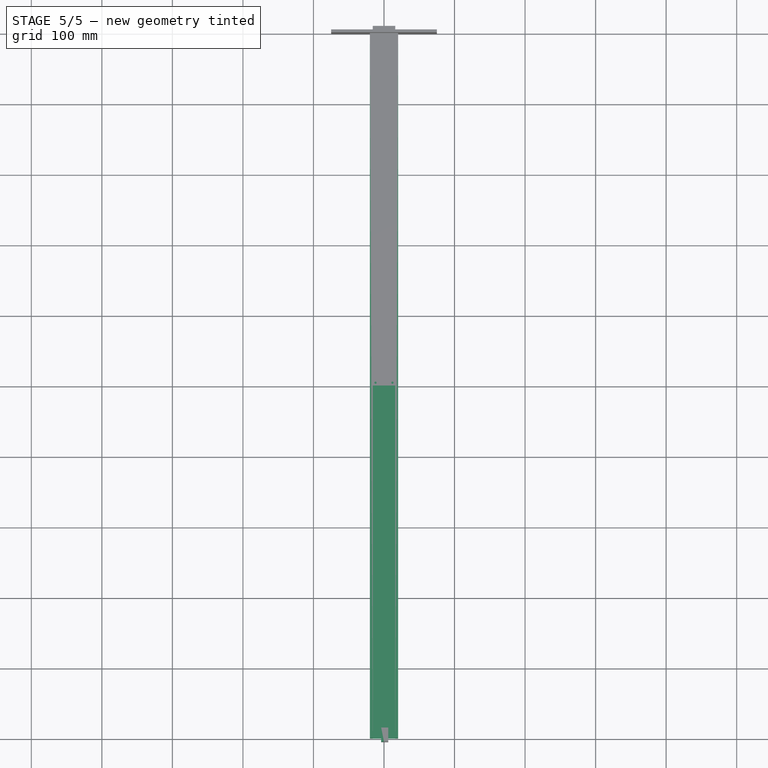
[diagram: stage 5 of 5 — top view after this stage's code; geometry added in this stage tinted green]
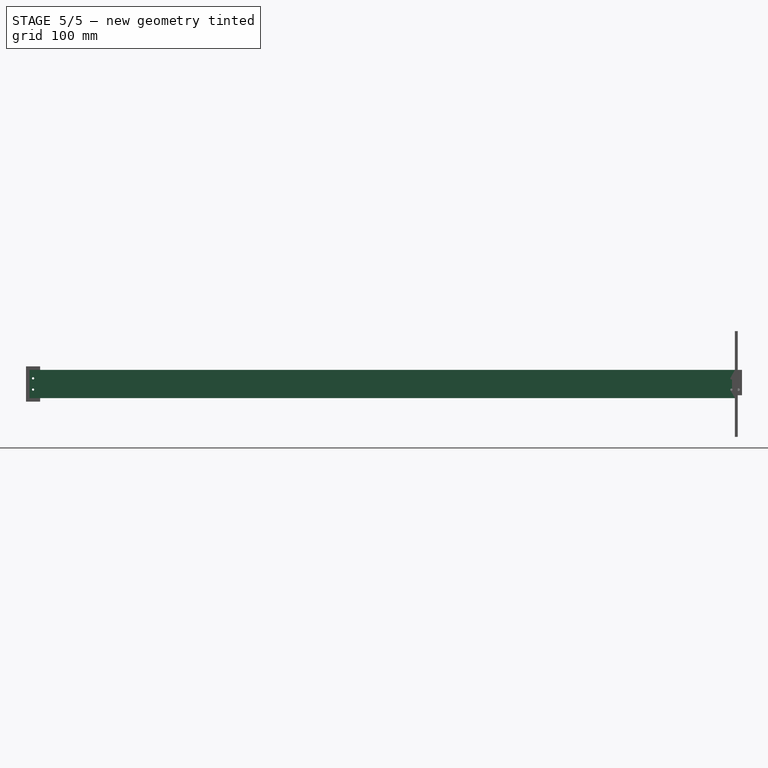
[diagram: stage 5 of 5 — right view after this stage's code; geometry added in this stage tinted green]
FEATURE [Sketcher::SketchObject] Sketch
  FullyConstrained = true
  MapMode = 5
  Placement = pos=(0,0,0) rot=(1,0,0;1.5708rad)
  sketch-geometry (8):
    g0: LineSegment StartX=-20 StartY=40 StartZ=0 EndX=-20 EndY=0 EndZ=0
    g1: LineSegment StartX=-20 StartY=0 StartZ=0 EndX=20 EndY=-1e-16 EndZ=0
    g2: LineSegment StartX=20 StartY=-1e-16 StartZ=0 EndX=20 EndY=40 EndZ=0
    g3: LineSegment StartX=20 StartY=40 StartZ=0 EndX=16 EndY=40 EndZ=0
    g4: LineSegment StartX=16 StartY=4 StartZ=0 EndX=-16 EndY=4 EndZ=0
    g5: LineSegment StartX=-16 StartY=40 StartZ=0 EndX=-20 EndY=40 EndZ=0
    g6: LineSegment StartX=-16 StartY=40 StartZ=0 EndX=-16 EndY=4 EndZ=0
    g7: LineSegment StartX=16 StartY=40 StartZ=0 EndX=16 EndY=4 EndZ=0
  constraints (22):
    c: Vertical(g0)
    c: Coincident(g0,g1)
    c: Coincident(g1,g2)
    c: Coincident(g2,g3)
    c: Horizontal(g3)
    c: Coincident(g5,g0)
    c: Horizontal(g5)
    c: DistanceY(g0,g0) = 40
    c: PointOnObject(g0,g-1)
    c: DistanceX(g1,g1) = 40
    c: Symmetric(g0,g1,g-2)
    c: Symmetric(g0,g2,g-2)
    c: Equal(g3,g5)
    c: DistanceX(g5,g5) = 4
    c: Coincident(g6,g5)
    c: Coincident(g6,g4)
    c: Vertical(g6)
    c: Coincident(g7,g3)
    c: Coincident(g7,g4)
    c: Vertical(g7)
    c: DistanceY(g0,g4) = 4
    c: Horizontal(g4)
FEATURE [PartDesign::Pad] Pad
  Direction = (0,-1,0)
  Length = 1000
  Length2 = 10
  Placement = pos=(0,0,0) rot=(1,0,0;1.5708rad)
  Profile = -> Sketch
  ReferenceAxis = -> Sketch [N_Axis]
  Type = 0
FEATURE [Sketcher::SketchObject] Sketch031
  FullyConstrained = true
  MapMode = 5
  Placement = pos=(-16,0,0) rot=(0.707107,0,-0.707107;3.14159rad)
  Support = -> [Pad019]
  sketch-geometry (3):
    g0: Circle CenterX=-28 CenterY=-5 CenterZ=0 NormalX=0 NormalY=0 NormalZ=1 AngleXU=0 Radius=2
    g1: Circle CenterX=-12 CenterY=-5 CenterZ=0 NormalX=0 NormalY=0 NormalZ=1 AngleXU=0 Radius=2
    g2: LineSegment StartX=-28 StartY=-5 StartZ=0 EndX=-12 EndY=-5 EndZ=0
  constraints (8):
    c: Coincident(g2,g0)
    c: Coincident(g2,g1)
    c: Horizontal(g2)
    c: DistanceX(g2,g2) = 16
    c: DistanceY(g1) = -5
    c: DistanceX(g1) = -12
    c: Equal(g0,g1)
    c: Radius(g1) = 2
FEATURE [Sketcher::SketchObject] Sketch032
  ExternalGeometry = -> [Pad]
  FullyConstrained = true
  MapMode = 5
  Placement = pos=(-20,0,0) rot=(0.707107,0,-0.707107;3.14159rad)
  Support = -> [Pad]
  sketch-geometry (6):
    g0: LineSegment StartX=-28 StartY=995 StartZ=0 EndX=-12 EndY=995 EndZ=0
    g1: Circle CenterX=-28 CenterY=995 CenterZ=0 NormalX=0 NormalY=0 NormalZ=1 AngleXU=0 Radius=1.6
    g2: Circle CenterX=-12 CenterY=995 CenterZ=0 NormalX=0 NormalY=0 NormalZ=1 AngleXU=0 Radius=1.6
    g3: Circle CenterX=-28 CenterY=5 CenterZ=0 NormalX=0 NormalY=0 NormalZ=1 AngleXU=0 Radius=1.6
    g4: Circle CenterX=-12 CenterY=5 CenterZ=0 NormalX=0 NormalY=0 NormalZ=1 AngleXU=0 Radius=1.6
    g5: LineSegment StartX=-28 StartY=5 StartZ=0 EndX=-12 EndY=5 EndZ=0
  constraints (16):
    c: Horizontal(g0)
    c: Coincident(g1,g0)
    c: Coincident(g2,g0)
    c: Equal(g2,g1)
    c: Radius(g2) = 1.6
    c: DistanceX(g0,g0) = 16
    c: DistanceY(g2,g-3) = 5
    c: DistanceX(g2,g-3) = 12
    c: Coincident(g5,g3)
    c: Coincident(g5,g4)
    c: Horizontal(g5)
    c: Equal(g3,g4)
    c: DistanceX(g4) = -12
    c: Equal(g5,g0)
    c: Equal(g4,g2)
    c: DistanceY(g4) = 5
FEATURE [PartDesign::Pocket] Pocket002
  BaseFeature = -> Pad
  Direction = (1,0,2e-16)
  Length = 5
  Length2 = 5
  Placement = pos=(0,0,0) rot=(1,0,0;1.5708rad)
  Profile = -> Sketch032
  ReferenceAxis = -> Sketch032 [N_Axis]
  Type = 1
FEATURE [PartDesign::Body] Body  label="Aluminium"
  Group = -> [Sketch,Pad,Sketch032,Pocket002]
  Origin = -> Origin
  Tip = -> Pocket002
FEATURE [Sketcher::SketchObject] Sketch033
  FullyConstrained = true
  MapMode = 5
  Support = -> [XY_Plane019]
  sketch-geometry (4):
    g0: LineSegment StartX=-5 StartY=-25 StartZ=0 EndX=5 EndY=-25 EndZ=0
    g1: LineSegment StartX=5 StartY=-25 StartZ=0 EndX=5 EndY=-975 EndZ=0
    g2: LineSegment StartX=5 StartY=-975 StartZ=0 EndX=-5 EndY=-975 EndZ=0
    g3: LineSegment StartX=-5 StartY=-975 StartZ=0 EndX=-5 EndY=-25 EndZ=0
  constraints (11):
    c: Coincident(g0,g1)
    c: Coincident(g1,g2)
    c: Coincident(g2,g3)
    c: Coincident(g3,g0)
    c: Horizontal(g0)
    c: Vertical(g1)
    c: Vertical(g3)
    c: Symmetric(g2,g1,g-2)
    c: DistanceX(g2,g2) = 10
    c: DistanceY(g3,g3) = 950
    c: DistanceY(g0) = -25
FEATURE [PartDesign::Pad] Pad020
  Direction = (0,0,1)
  Length = 0.1
  Length2 = 10
  Profile = -> Sketch033
  ReferenceAxis = -> Sketch033 [N_Axis]
  Type = 0
FEATURE [Sketcher::SketchObject] Sketch038
  ExternalGeometry = -> [Pad022]
  FullyConstrained = true
  MapMode = 5
  Placement = pos=(-2.1e-15,0,0) rot=(0.57735,0.57735,-0.57735;4.18879rad)
  Support = -> [Pad022]
  sketch-geometry (8):
    g0: LineSegment StartX=-985 StartY=5 StartZ=0 EndX=-1005 EndY=5 EndZ=0
    g1: LineSegment StartX=-1005 StartY=5 StartZ=0 EndX=-1005 EndY=-45 EndZ=0
    g2: LineSegment StartX=-1005 StartY=-45 StartZ=0 EndX=-985 EndY=-45 EndZ=0
    g3: LineSegment StartX=-1000 StartY=0 StartZ=0 EndX=-985 EndY=0 EndZ=0
    g4: LineSegment StartX=-985 StartY=-45 StartZ=0 EndX=-985 EndY=-40 EndZ=0
    g5: LineSegment StartX=-985 StartY=-40 StartZ=0 EndX=-1000 EndY=-40 EndZ=0
    g6: LineSegment StartX=-1000 StartY=-40 StartZ=0 EndX=-1000 EndY=0 EndZ=0
    g7: LineSegment StartX=-985 StartY=5 StartZ=0 EndX=-985 EndY=0 EndZ=0
  constraints (23):
    c: Coincident(g0,g-3)
    c: Coincident(g0,g1)
    c: Coincident(g1,g-3)
    c: Coincident(g1,g2)
    c: PointOnObject(g3,g-1)
    c: Horizontal(g3)
    c: DistanceX(g3,g3) = 15
    c: Coincident(g2,g4)
    c: Coincident(g4,g5)
    c: Horizontal(g5)
    c: Coincident(g5,g6)
    c: Vertical(g6)
    c: Coincident(g7,g0)
    c: PointOnObject(g7,g3)
    c: Vertical(g7)
    c: Equal(g4,g7)
    c: Equal(g5,g3)
    c: DistanceY(g7,g7) = 5
    c: Vertical(g4)
    c: Equal(g0,g2)
    c: Horizontal(g2)
    c: DistanceX(g0,g0) = 20
    c: Coincident(g3,g6)
FEATURE [PartDesign::Pad] Pad023
  BaseFeature = -> Pad022
  Direction = (-1,7e-16,-3e-16)
  Length = 4
  Length2 = 10
  Placement = pos=(0,0,0) rot=(0.57735,0.57735,0.57735;2.0944rad)
  Profile = -> Sketch038
  ReferenceAxis = -> Sketch038 [N_Axis]
  Type = 0
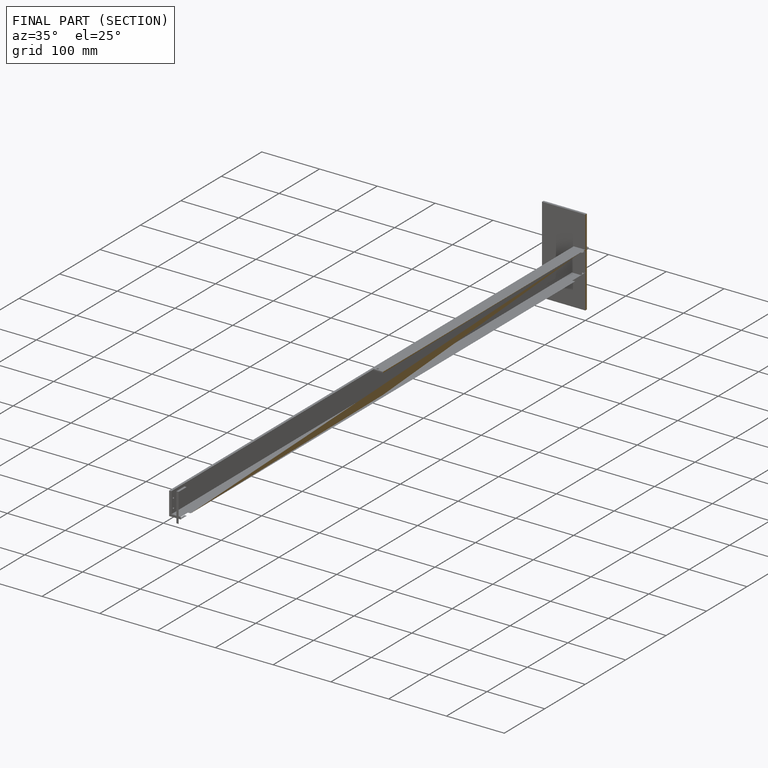
[diagram: finished part — half-section view (interior)]
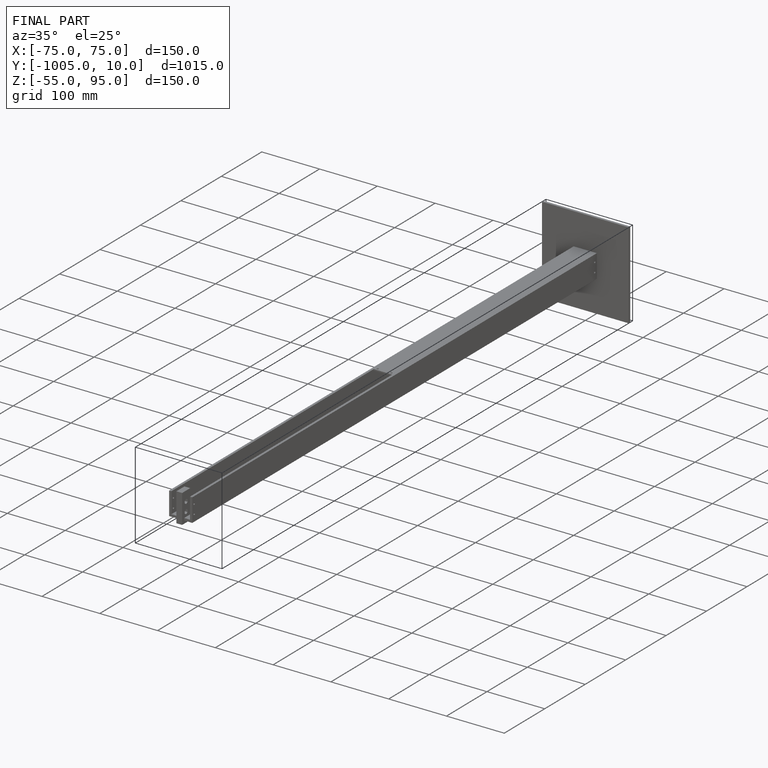
[diagram: finished part — iso view with bounding-box wireframe]
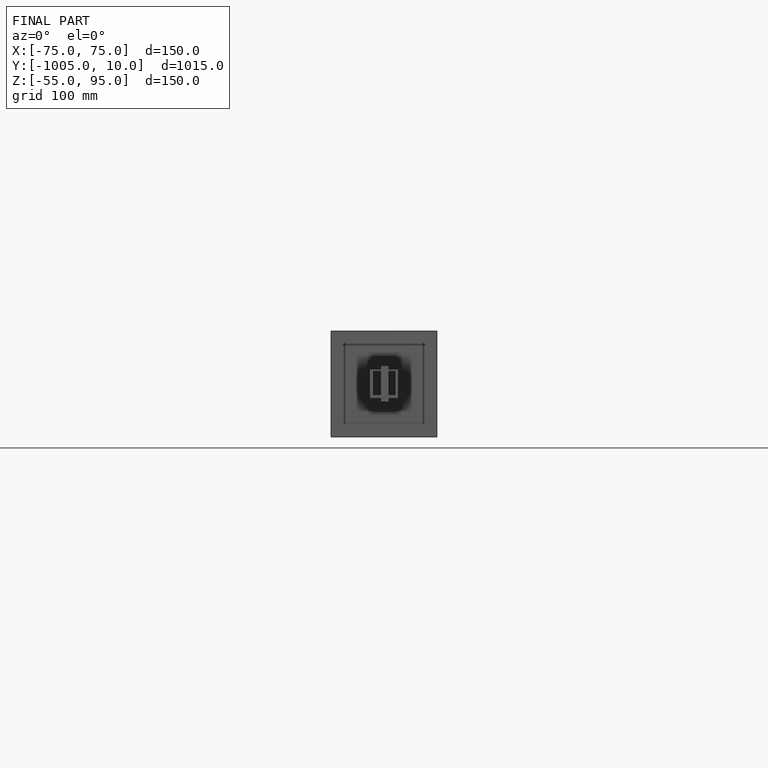
[diagram: finished part — front view with bounding-box wireframe]
